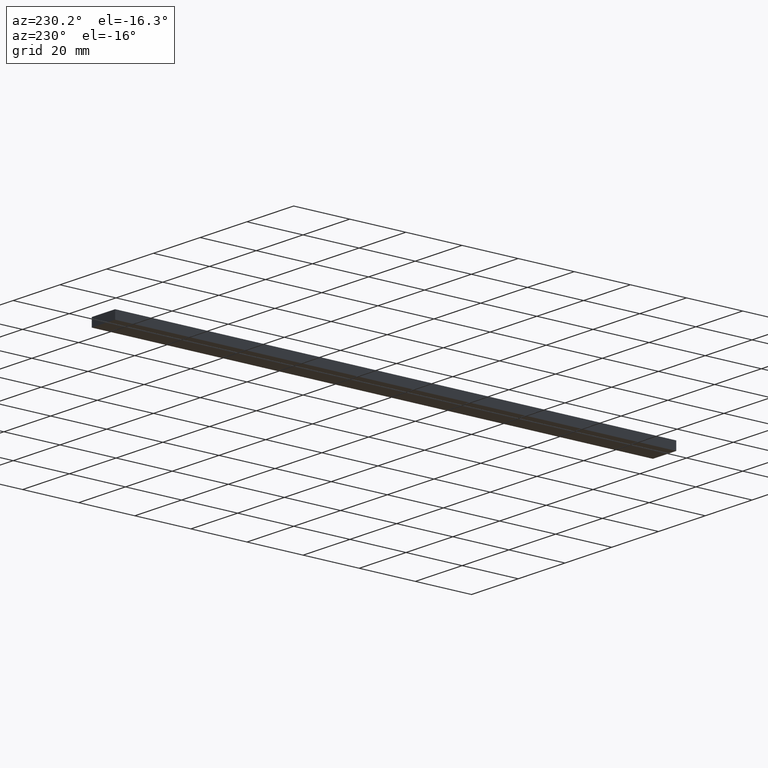
[diagram: clean part render]
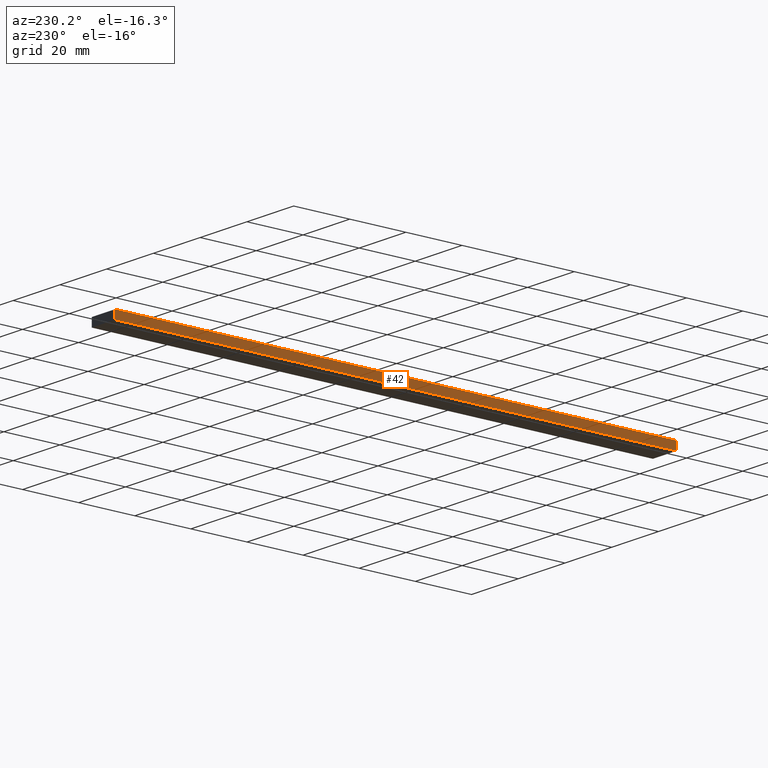
[diagram: same view with one face highlighted and labeled with its STEP entity id]
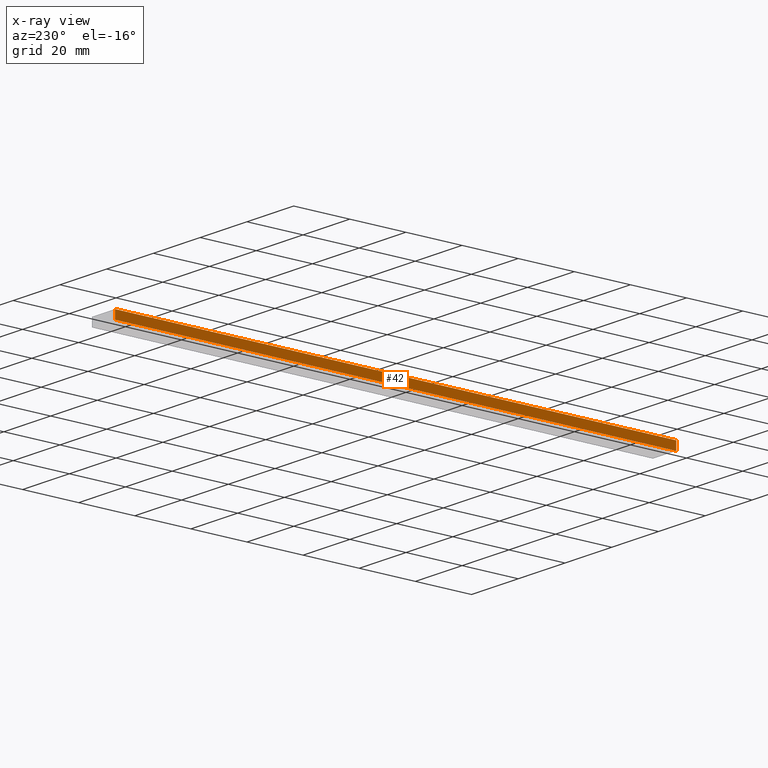
[diagram: x-ray of the same camera — body ghosted, the highlighted face saturated]
A machine part, auxiliary view. The second image highlights one B-rep face of the part: STEP entity #42.
The next image is the same camera in x-ray: the body ghosted, the highlighted face saturated — about 0% of this face is hidden behind the body in this view.
In plain terms, the highlighted planar face has unit normal (-1, 0, 0).
Its self-contained STEP definition (entity closure, byte-faithful):
#42=ADVANCED_FACE('',(#67),#66,.T.);
#66=PLANE('',#119);
#67=FACE_OUTER_BOUND('',#120,.T.);
#116=CARTESIAN_POINT('',(-5.55953100175E+01,-1.00000000000E+01,-1.85203116864E+01));
#117=DIRECTION('',(-1.00000000000E+00,0.00000000000E+00,0.00000000000E+00));
#118=DIRECTION('',(0.00000000000E+00,0.00000000000E+00,1.00000000000E+00));
#119=AXIS2_PLACEMENT_3D('',#116,#117,#118);
#120=EDGE_LOOP('',(#144,#145,#146,#147));
#144=ORIENTED_EDGE('',*,*,#167,.F.);
#145=ORIENTED_EDGE('',*,*,#168,.F.);
#146=ORIENTED_EDGE('',*,*,#161,.T.);
#147=ORIENTED_EDGE('',*,*,#169,.T.);
#161=EDGE_CURVE('',#180,#172,#181,.T.);
#167=EDGE_CURVE('',#215,#200,#222,.T.);
#168=EDGE_CURVE('',#180,#215,#228,.T.);
#169=EDGE_CURVE('',#172,#200,#234,.T.);
#172=VERTEX_POINT('',#252);
#180=VERTEX_POINT('',#257);
#181=LINE('',#258,#259);
#200=VERTEX_POINT('',#268);
#215=VERTEX_POINT('',#277);
#222=LINE('',#281,#282);
#228=LINE('',#284,#285);
#234=LINE('',#287,#288);
#252=CARTESIAN_POINT('',(-5.55953100175E+01,2.00000000000E+02,-1.82203116864E+01));
#257=CARTESIAN_POINT('',(-5.55953100175E+01,2.00000000000E+02,-1.52203116864E+01));
#258=CARTESIAN_POINT('',(-5.55953100175E+01,2.00000000000E+02,-1.52203116864E+01));
#259=VECTOR('',#260,3.00000000000E+00);
#260=DIRECTION('',(0.00000000000E+00,0.00000000000E+00,-1.00000000000E+00));
#268=CARTESIAN_POINT('',(-5.55953100175E+01,0.00000000000E+00,-1.82203116864E+01));
#277=CARTESIAN_POINT('',(-5.55953100175E+01,0.00000000000E+00,-1.52203116864E+01));
#281=CARTESIAN_POINT('',(-5.55953100175E+01,0.00000000000E+00,-1.52203116864E+01));
#282=VECTOR('',#283,3.00000000000E+00);
#283=DIRECTION('',(0.00000000000E+00,0.00000000000E+00,-1.00000000000E+00));
#284=CARTESIAN_POINT('',(-5.55953100175E+01,2.00000000000E+02,-1.52203116864E+01));
#285=VECTOR('',#286,2.00000000000E+02);
#286=DIRECTION('',(0.00000000000E+00,-1.00000000000E+00,0.00000000000E+00));
#287=CARTESIAN_POINT('',(-5.55953100175E+01,2.00000000000E+02,-1.82203116864E+01));
#288=VECTOR('',#289,2.00000000000E+02);
#289=DIRECTION('',(0.00000000000E+00,-1.00000000000E+00,0.00000000000E+00));